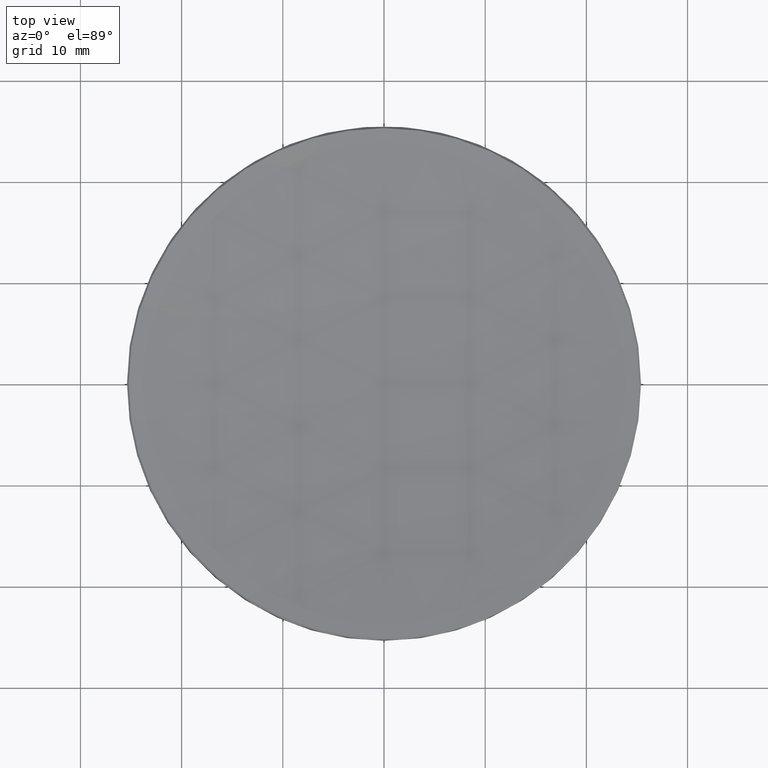
[diagram: clean part render]
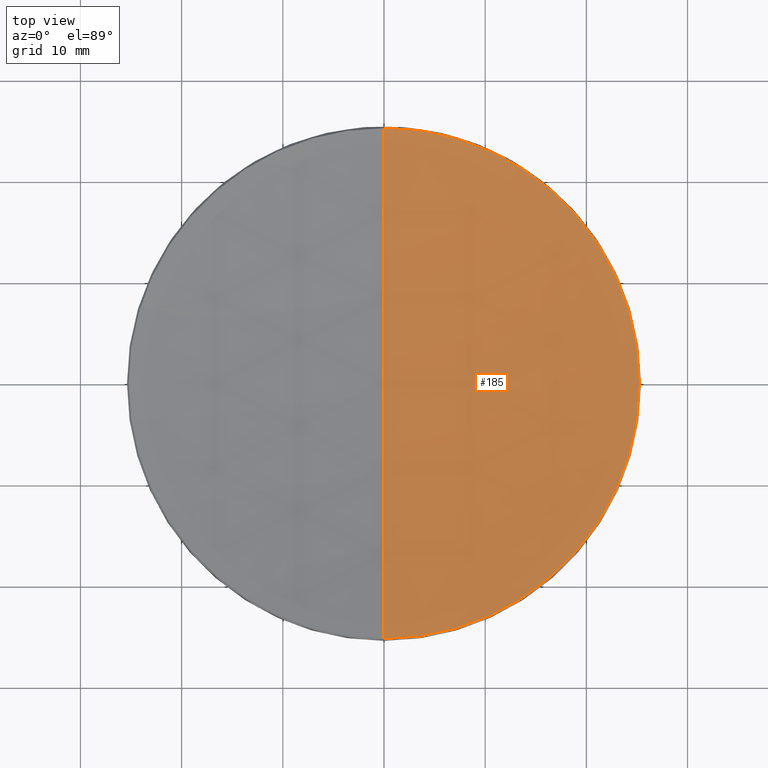
[diagram: same view with one face highlighted and labeled with its STEP entity id]
A machine part, top view. The second image highlights one B-rep face of the part: STEP entity #185.
In plain terms, the highlighted spherical surface has radius 171.6 mm.
Its self-contained STEP definition (entity closure, byte-faithful):
#22 = CARTESIAN_POINT ( 'NONE',  ( 0.000000000000000000, 0.000000000000000000, 185.6097522242018840 ) ) ;
#30 = AXIS2_PLACEMENT_3D ( 'NONE', #80, #106, #62 ) ;
#52 = CIRCLE ( 'NONE', #221, 25.22595727592940662 ) ;
#60 = VERTEX_POINT ( 'NONE', #114 ) ;
#62 = DIRECTION ( 'NONE',  ( 0.000000000000000000, 0.000000000000000000, -1.000000000000000000 ) ) ;
#80 = CARTESIAN_POINT ( 'NONE',  ( 0.000000000000000000, 0.000000000000000000, 185.6097522242018840 ) ) ;
#89 = CIRCLE ( 'NONE', #108, 171.5999999999999659 ) ;
#98 = VERTEX_POINT ( 'NONE', #99 ) ;
#99 = CARTESIAN_POINT ( 'NONE',  ( 0.000000000000000000, 25.22595727592939951, 15.87404272407055927 ) ) ;
#100 = ORIENTED_EDGE ( 'NONE', *, *, #131, .T. ) ;
#106 = DIRECTION ( 'NONE',  ( 1.000000000000000000, 0.000000000000000000, 0.000000000000000000 ) ) ;
#108 = AXIS2_PLACEMENT_3D ( 'NONE', #22, #151, #236 ) ;
#114 = CARTESIAN_POINT ( 'NONE',  ( 25.22595727592940662, 3.099945826586880264E-15, 15.87404272407055927 ) ) ;
#116 = VERTEX_POINT ( 'NONE', #220 ) ;
#125 = ORIENTED_EDGE ( 'NONE', *, *, #214, .T. ) ;
#128 = AXIS2_PLACEMENT_3D ( 'NONE', #183, #206, #248 ) ;
#130 = CARTESIAN_POINT ( 'NONE',  ( -3.089288783339482875E-15, -25.22595727592939951, 15.87404272407055927 ) ) ;
#131 = EDGE_CURVE ( 'NONE', #116, #192, #89, .T. ) ;
#134 = EDGE_CURVE ( 'NONE', #192, #60, #52, .T. ) ;
#151 = DIRECTION ( 'NONE',  ( -1.000000000000000000, 1.224646799147353207E-16, 0.000000000000000000 ) ) ;
#154 = CIRCLE ( 'NONE', #30, 171.5999999999999659 ) ;
#155 = DIRECTION ( 'NONE',  ( 0.000000000000000000, 1.000000000000000000, 0.000000000000000000 ) ) ;
#157 = SPHERICAL_SURFACE ( 'NONE', #190, 171.5999999999999659 ) ;
#183 = CARTESIAN_POINT ( 'NONE',  ( 0.000000000000000000, 0.000000000000000000, 15.87404272407055927 ) ) ;
#185 = ADVANCED_FACE ( 'NONE', ( #226 ), #157, .F. ) ;
#190 = AXIS2_PLACEMENT_3D ( 'NONE', #228, #273, #155 ) ;
#192 = VERTEX_POINT ( 'NONE', #130 ) ;
#200 = DIRECTION ( 'NONE',  ( 1.000000000000000000, 0.000000000000000000, 0.000000000000000000 ) ) ;
#202 = EDGE_CURVE ( 'NONE', #116, #98, #154, .T. ) ;
#206 = DIRECTION ( 'NONE',  ( -0.000000000000000000, -0.000000000000000000, 1.000000000000000000 ) ) ;
#214 = EDGE_CURVE ( 'NONE', #60, #98, #255, .T. ) ;
#220 = CARTESIAN_POINT ( 'NONE',  ( 0.000000000000000000, 1.050746953668428865E-14, 14.00975222420192168 ) ) ;
#221 = AXIS2_PLACEMENT_3D ( 'NONE', #258, #239, #200 ) ;
#226 = FACE_OUTER_BOUND ( 'NONE', #244, .T. ) ;
#228 = CARTESIAN_POINT ( 'NONE',  ( 0.000000000000000000, 0.000000000000000000, 185.6097522242018840 ) ) ;
#236 = DIRECTION ( 'NONE',  ( -1.224646799147353207E-16, -1.000000000000000000, 0.000000000000000000 ) ) ;
#238 = ORIENTED_EDGE ( 'NONE', *, *, #134, .T. ) ;
#239 = DIRECTION ( 'NONE',  ( -0.000000000000000000, -0.000000000000000000, 1.000000000000000000 ) ) ;
#242 = ORIENTED_EDGE ( 'NONE', *, *, #202, .F. ) ;
#244 = EDGE_LOOP ( 'NONE', ( #242, #100, #238, #125 ) ) ;
#248 = DIRECTION ( 'NONE',  ( 1.000000000000000000, 0.000000000000000000, 0.000000000000000000 ) ) ;
#255 = CIRCLE ( 'NONE', #128, 25.22595727592940662 ) ;
#258 = CARTESIAN_POINT ( 'NONE',  ( 0.000000000000000000, 0.000000000000000000, 15.87404272407055927 ) ) ;
#273 = DIRECTION ( 'NONE',  ( -1.000000000000000000, 0.000000000000000000, 0.000000000000000000 ) ) ;